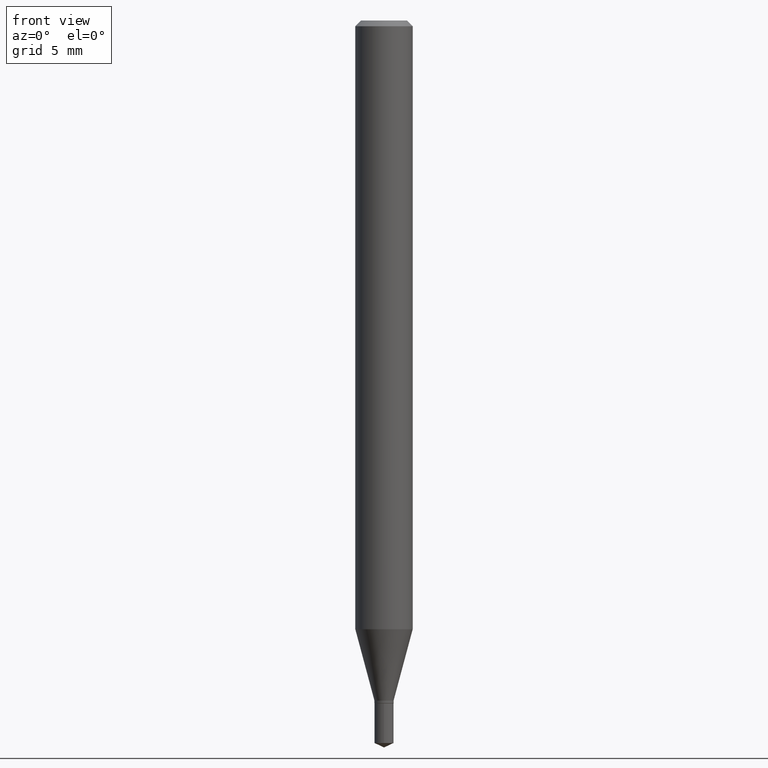
[diagram: clean part render]
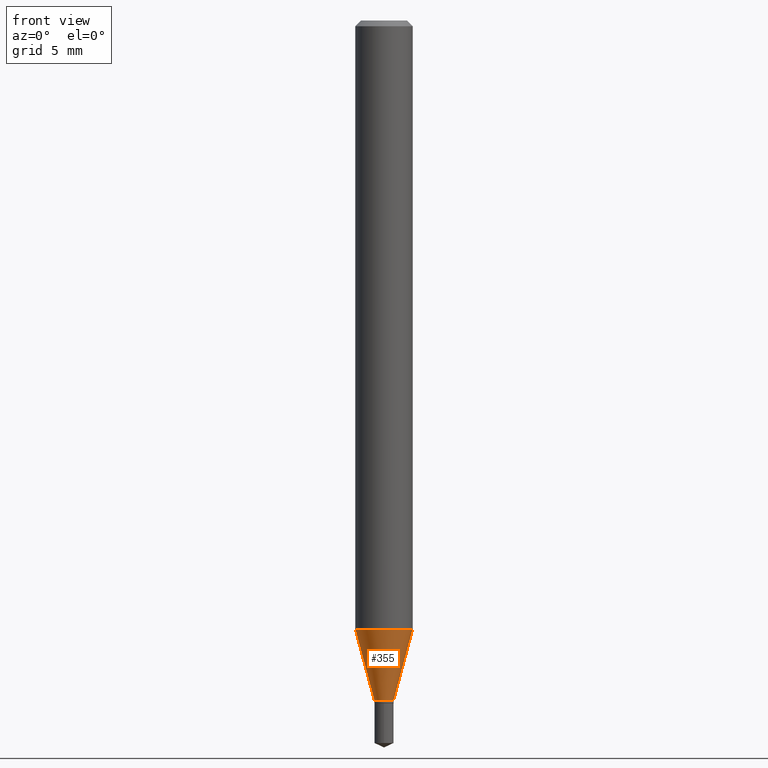
[diagram: same view with one face highlighted and labeled with its STEP entity id]
A machine part, front view. The second image highlights one B-rep face of the part: STEP entity #355.
In plain terms, the highlighted conical surface has half-angle 15 deg.
Its self-contained STEP definition (entity closure, byte-faithful):
#13 = LINE ( 'NONE', #462, #407 ) ;
#17 = EDGE_CURVE ( 'NONE', #138, #446, #443, .T. ) ;
#18 = CARTESIAN_POINT ( 'NONE',  ( 3.422678141136717106E-29, -4.886677281844866061E-15, -1.399599999999999955 ) ) ;
#26 = EDGE_CURVE ( 'NONE', #331, #138, #321, .T. ) ;
#35 = AXIS2_PLACEMENT_3D ( 'NONE', #377, #121, #388 ) ;
#59 = ORIENTED_EDGE ( 'NONE', *, *, #483, .F. ) ;
#61 = DIRECTION ( 'NONE',  ( -2.445468806185136597E-29, 3.491481338843145583E-15, 1.000000000000000000 ) ) ;
#113 = DIRECTION ( 'NONE',  ( -2.445468806185136597E-29, 3.491481338843145583E-15, 1.000000000000000000 ) ) ;
#121 = DIRECTION ( 'NONE',  ( -2.445468806185136597E-29, 3.491481338843145583E-15, 1.000000000000000000 ) ) ;
#123 = DIRECTION ( 'NONE',  ( -0.2588190451025214611, 5.211531920934551042E-15, 0.9659258262890682012 ) ) ;
#138 = VERTEX_POINT ( 'NONE', #359 ) ;
#148 = AXIS2_PLACEMENT_3D ( 'NONE', #18, #61, #197 ) ;
#169 = ORIENTED_EDGE ( 'NONE', *, *, #17, .T. ) ;
#174 = CARTESIAN_POINT ( 'NONE',  ( 0.05905000000000015098, -4.786275548690248872E-15, -1.252743800722164513 ) ) ;
#176 = CARTESIAN_POINT ( 'NONE',  ( 0.01969999999999999182, -5.024241646595286064E-15, -1.399599999999999955 ) ) ;
#197 = DIRECTION ( 'NONE',  ( 1.000000000000000000, -6.982962677686280910E-15, 0.000000000000000000 ) ) ;
#210 = EDGE_CURVE ( 'NONE', #331, #427, #13, .T. ) ;
#228 = ORIENTED_EDGE ( 'NONE', *, *, #210, .F. ) ;
#259 = FACE_OUTER_BOUND ( 'NONE', #434, .T. ) ;
#290 = CARTESIAN_POINT ( 'NONE',  ( -0.01969999999999999182, -4.756127362515003660E-15, -1.399599999999999955 ) ) ;
#321 = CIRCLE ( 'NONE', #148, 0.01969999999999999182 ) ;
#329 = DIRECTION ( 'NONE',  ( 0.2588190451025214611, 1.565188264969621573E-15, 0.9659258262890682012 ) ) ;
#331 = VERTEX_POINT ( 'NONE', #290 ) ;
#338 = DIRECTION ( 'NONE',  ( 1.000000000000000000, -6.982962677686271444E-15, 0.000000000000000000 ) ) ;
#342 = CIRCLE ( 'NONE', #354, 0.05905000000000015098 ) ;
#348 = CARTESIAN_POINT ( 'NONE',  ( -0.05905000000000015098, -3.954356117106533670E-15, -1.252743800722164513 ) ) ;
#354 = AXIS2_PLACEMENT_3D ( 'NONE', #455, #113, #338 ) ;
#355 = ADVANCED_FACE ( 'NONE', ( #259 ), #400, .T. ) ;
#359 = CARTESIAN_POINT ( 'NONE',  ( 0.01969999999999999182, -5.024241646595286064E-15, -1.399599999999999955 ) ) ;
#377 = CARTESIAN_POINT ( 'NONE',  ( 3.422678141136717106E-29, -4.886677281844866061E-15, -1.399599999999999955 ) ) ;
#388 = DIRECTION ( 'NONE',  ( 1.000000000000000000, -6.982962677686280910E-15, 0.000000000000000000 ) ) ;
#400 = CONICAL_SURFACE ( 'NONE', #35, 0.01969999999999999182, 0.2617993877991501295 ) ;
#407 = VECTOR ( 'NONE', #123, 39.37007874015747433 ) ;
#419 = VECTOR ( 'NONE', #329, 39.37007874015747433 ) ;
#427 = VERTEX_POINT ( 'NONE', #348 ) ;
#434 = EDGE_LOOP ( 'NONE', ( #228, #465, #169, #59 ) ) ;
#443 = LINE ( 'NONE', #176, #419 ) ;
#446 = VERTEX_POINT ( 'NONE', #174 ) ;
#455 = CARTESIAN_POINT ( 'NONE',  ( 3.063545886807862296E-29, -4.373931602572873162E-15, -1.252743800722164513 ) ) ;
#462 = CARTESIAN_POINT ( 'NONE',  ( -0.01969999999999999182, -4.746700362900126752E-15, -1.399599999999999955 ) ) ;
#465 = ORIENTED_EDGE ( 'NONE', *, *, #26, .T. ) ;
#483 = EDGE_CURVE ( 'NONE', #427, #446, #342, .T. ) ;